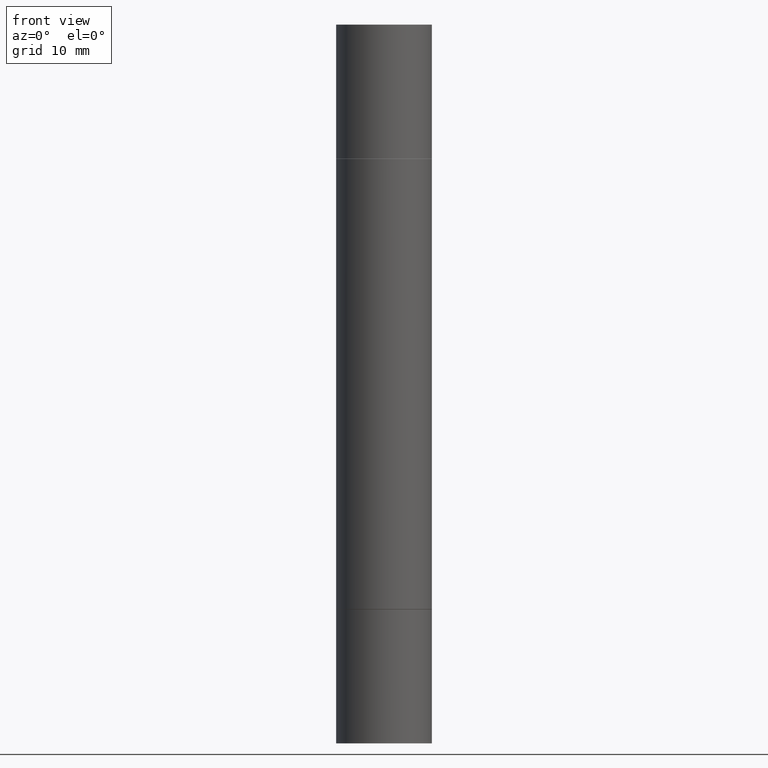
[diagram: clean part render]
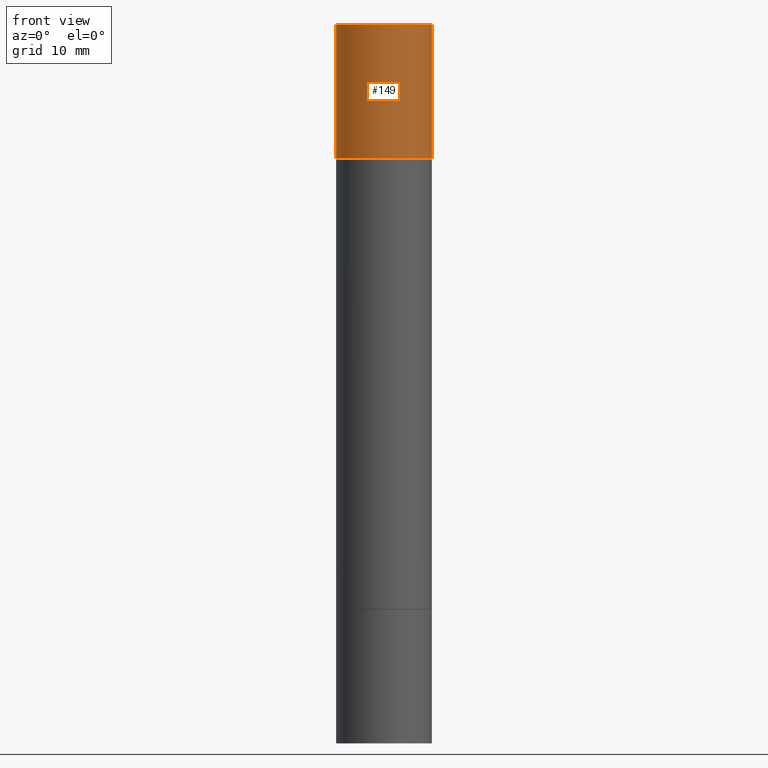
[diagram: same view with one face highlighted and labeled with its STEP entity id]
A machine part, front view. The second image highlights one B-rep face of the part: STEP entity #149.
In plain terms, the highlighted cylindrical surface (partial cylindrical patch) has radius 5 mm, axis along (-0, -0, -1).
Its self-contained STEP definition (entity closure, byte-faithful):
#22 = CIRCLE ( 'NONE', #405, 0.1968500000000000250 ) ;
#34 = ORIENTED_EDGE ( 'NONE', *, *, #464, .T. ) ;
#60 = ORIENTED_EDGE ( 'NONE', *, *, #165, .F. ) ;
#61 = EDGE_CURVE ( 'NONE', #541, #660, #22, .T. ) ;
#123 = ORIENTED_EDGE ( 'NONE', *, *, #233, .F. ) ;
#135 = DIRECTION ( 'NONE',  ( -2.445468806185136877E-29, -3.492890411551753071E-15, -1.000000000000000000 ) ) ;
#149 = ADVANCED_FACE ( 'NONE', ( #679 ), #488, .T. ) ;
#165 = EDGE_CURVE ( 'NONE', #560, #228, #211, .T. ) ;
#190 = CARTESIAN_POINT ( 'NONE',  ( 0.1968500000000000250, -1.168632265538556569E-14, -2.952799999999998981 ) ) ;
#203 = AXIS2_PLACEMENT_3D ( 'NONE', #321, #523, #339 ) ;
#211 = CIRCLE ( 'NONE', #203, 0.1968500000000000250 ) ;
#228 = VERTEX_POINT ( 'NONE', #403 ) ;
#233 = EDGE_CURVE ( 'NONE', #228, #660, #651, .T. ) ;
#267 = CARTESIAN_POINT ( 'NONE',  ( -0.1968500000000000250, 3.899287883846532010E-16, -0.5511999999999995792 ) ) ;
#272 = EDGE_LOOP ( 'NONE', ( #60, #34, #662, #123 ) ) ;
#319 = VECTOR ( 'NONE', #135, 39.37007874015748143 ) ;
#321 = CARTESIAN_POINT ( 'NONE',  ( 7.220980290903470182E-29, 2.080354946989631982E-18, 5.463695987328526437E-16 ) ) ;
#339 = DIRECTION ( 'NONE',  ( 1.000000000000000000, -6.982962677686265922E-15, 0.000000000000000000 ) ) ;
#343 = CARTESIAN_POINT ( 'NONE',  ( 0.1968500000000000250, -3.297797043002877729E-15, -0.5511999999999995792 ) ) ;
#366 = DIRECTION ( 'NONE',  ( 1.000000000000000000, -6.982962677686267499E-15, 0.000000000000000000 ) ) ;
#395 = DIRECTION ( 'NONE',  ( -2.445468806185136877E-29, -3.492890411551753071E-15, -1.000000000000000000 ) ) ;
#403 = CARTESIAN_POINT ( 'NONE',  ( 0.1968500000000000250, -1.372515848155552113E-15, 5.463695987328526437E-16 ) ) ;
#405 = AXIS2_PLACEMENT_3D ( 'NONE', #515, #473, #366 ) ;
#423 = DIRECTION ( 'NONE',  ( -2.445468806185136597E-29, -3.492890411551752677E-15, -1.000000000000000000 ) ) ;
#444 = CARTESIAN_POINT ( 'NONE',  ( 0.000000000000000000, -1.031172645228302408E-14, -2.952799999999998981 ) ) ;
#446 = LINE ( 'NONE', #643, #319 ) ;
#464 = EDGE_CURVE ( 'NONE', #560, #541, #446, .T. ) ;
#473 = DIRECTION ( 'NONE',  ( 2.445468806185136597E-29, 3.492890411551752677E-15, 1.000000000000000000 ) ) ;
#479 = CARTESIAN_POINT ( 'NONE',  ( -0.1968500000000000250, 3.899287883846529545E-16, 5.463695987328561936E-16 ) ) ;
#488 = CYLINDRICAL_SURFACE ( 'NONE', #656, 0.1968500000000000250 ) ;
#515 = CARTESIAN_POINT ( 'NONE',  ( 5.873037884934223228E-29, -1.923200839900336120E-15, -0.5511999999999995792 ) ) ;
#518 = VECTOR ( 'NONE', #395, 39.37007874015748143 ) ;
#523 = DIRECTION ( 'NONE',  ( 2.445468806185136597E-29, 3.492890411551752677E-15, 1.000000000000000000 ) ) ;
#541 = VERTEX_POINT ( 'NONE', #267 ) ;
#560 = VERTEX_POINT ( 'NONE', #479 ) ;
#623 = DIRECTION ( 'NONE',  ( 1.000000000000000000, -6.982962677686267499E-15, 0.000000000000000000 ) ) ;
#643 = CARTESIAN_POINT ( 'NONE',  ( -0.1968500000000000250, -8.961237421421697861E-15, -2.952799999999998981 ) ) ;
#651 = LINE ( 'NONE', #190, #518 ) ;
#656 = AXIS2_PLACEMENT_3D ( 'NONE', #444, #423, #623 ) ;
#660 = VERTEX_POINT ( 'NONE', #343 ) ;
#662 = ORIENTED_EDGE ( 'NONE', *, *, #61, .T. ) ;
#679 = FACE_OUTER_BOUND ( 'NONE', #272, .T. ) ;